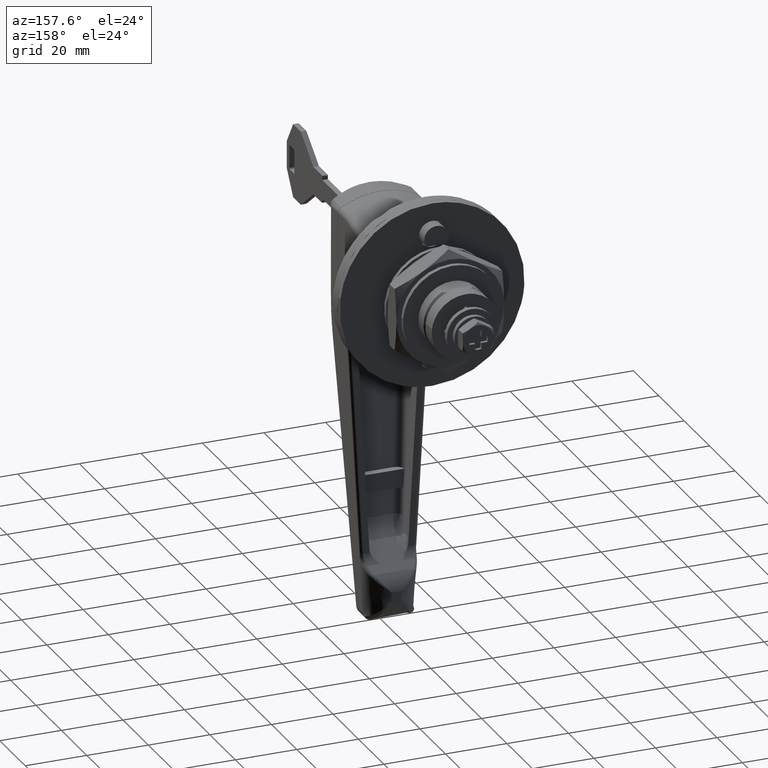
[diagram: clean part render]
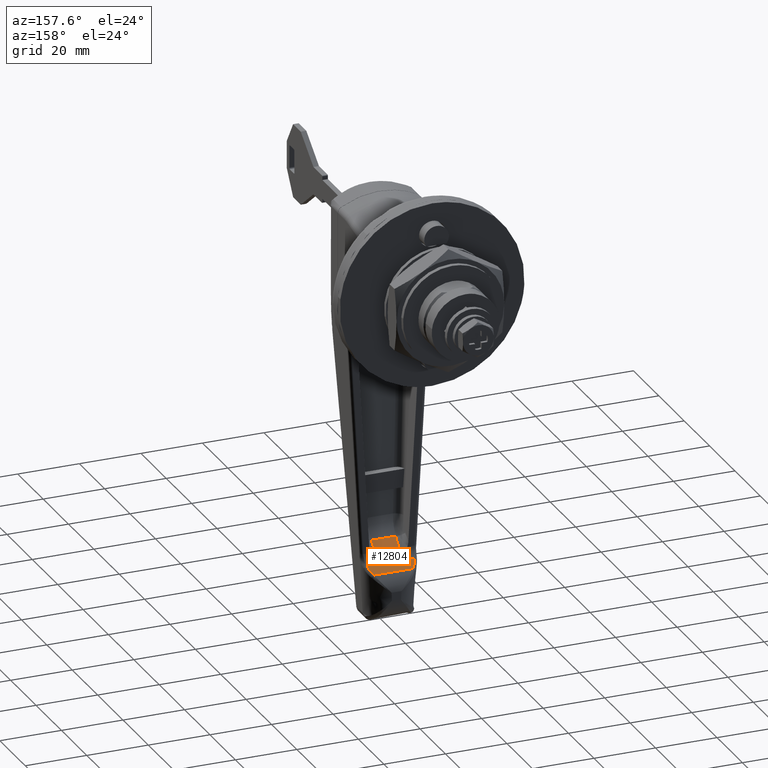
[diagram: same view with one face highlighted and labeled with its STEP entity id]
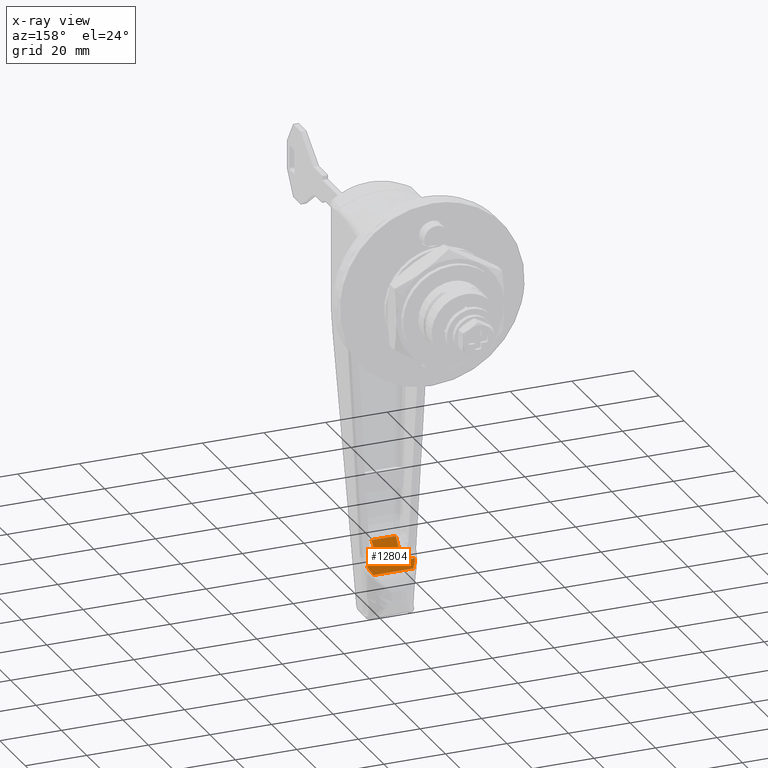
[diagram: x-ray of the same camera — body ghosted, the highlighted face saturated]
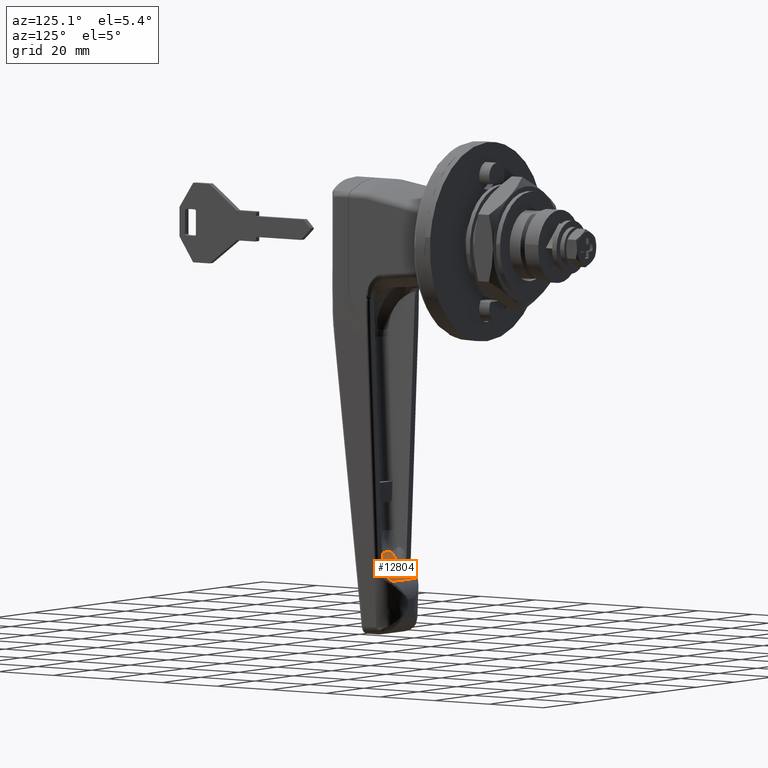
[diagram: same view with one face highlighted and labeled with its STEP entity id]
A machine part, auxiliary view. The second image highlights one B-rep face of the part: STEP entity #12804.
The next image is the same camera in x-ray: the body ghosted, the highlighted face saturated — about 0% of this face is hidden behind the body in this view.
A second angle (auxiliary view) of the same face is appended — the face is thin or edge-on in the first view.
In plain terms, the highlighted face is a freeform B-spline surface patch.
Its self-contained STEP definition (entity closure, byte-faithful):
#6948=CARTESIAN_POINT('',(-31.635533905932551,-7.742059716016160,-101.464465905932600));
#6949=VERTEX_POINT('',#6948);
#7049=CARTESIAN_POINT('',(-29.443145750507650,-6.395965675732420,-103.656853750507590));
#7050=VERTEX_POINT('',#7049);
#7064=CARTESIAN_POINT('',(-31.635533905932551,-7.742059716016160,-101.464465905932600));
#7065=CARTESIAN_POINT('',(-30.408878801560618,-7.296403844959794,-102.691120836382110));
#7066=CARTESIAN_POINT('',(-29.443145750507650,-6.395965675732420,-103.656853750507590));
#7074=(BOUNDED_CURVE()B_SPLINE_CURVE(2,(#7064,#7065,#7066),.UNSPECIFIED.,.F.,.U.)CURVE()GEOMETRIC_REPRESENTATION_ITEM()QUASI_UNIFORM_CURVE()RATIONAL_B_SPLINE_CURVE((1.0,0.977895714591920,1.0))REPRESENTATION_ITEM(''));
#7075=EDGE_CURVE('',#6949,#7050,#7074,.T.);
#7638=CARTESIAN_POINT('',(-31.635533905932551,7.742059700512010,-101.464465905932600));
#7639=VERTEX_POINT('',#7638);
#7751=CARTESIAN_POINT('',(-29.443145750507650,6.395965710801590,-103.656853750507590));
#7752=VERTEX_POINT('',#7751);
#7782=CARTESIAN_POINT('',(-29.443145750507650,6.395965710801590,-103.656853750507590));
#7783=CARTESIAN_POINT('',(-30.408878831459457,7.296403856661801,-102.691120806483270));
#7784=CARTESIAN_POINT('',(-31.635533905932551,7.742059700512010,-101.464465905932600));
#7792=(BOUNDED_CURVE()B_SPLINE_CURVE(2,(#7782,#7783,#7784),.UNSPECIFIED.,.F.,.U.)CURVE()GEOMETRIC_REPRESENTATION_ITEM()QUASI_UNIFORM_CURVE()RATIONAL_B_SPLINE_CURVE((1.0,0.977895715517294,1.0))REPRESENTATION_ITEM(''));
#7793=EDGE_CURVE('',#7752,#7639,#7792,.T.);
#8423=CARTESIAN_POINT('',(-37.269600141216763,3.956541414289030,-95.830399858783494));
#8424=VERTEX_POINT('',#8423);
#8869=CARTESIAN_POINT('',(-37.269600141216763,-3.956541413496995,-95.830399858783494));
#8870=VERTEX_POINT('',#8869);
#9318=CARTESIAN_POINT('',(-37.269600141216763,3.956541414289030,-95.830399858783494));
#9319=CARTESIAN_POINT('',(-37.269600141216763,-3.956541413496995,-95.830399858783494));
#9320=QUASI_UNIFORM_CURVE('',1,(#9318,#9319),.UNSPECIFIED.,.F.,.U.);
#9321=EDGE_CURVE('',#8424,#8870,#9320,.T.);
#9398=CARTESIAN_POINT('',(-34.452567070608438,3.797395287932277,-98.647432929391769));
#9399=VERTEX_POINT('',#9398);
#9400=CARTESIAN_POINT('',(-37.269600141216763,3.956541414289030,-95.830399858783494));
#9401=CARTESIAN_POINT('',(-36.330589117680780,3.903492704975646,-96.769410882319519));
#9402=CARTESIAN_POINT('',(-35.391578094144613,3.850443996453961,-97.708421905855630));
#9403=CARTESIAN_POINT('',(-34.452567070608438,3.797395287932277,-98.647432929391755));
#9404=B_SPLINE_CURVE_WITH_KNOTS('',3,(#9400,#9401,#9402,#9403),.UNSPECIFIED.,.F.,.U.,(4,4),(0.0,0.102404795091925),.UNSPECIFIED.);
#9405=EDGE_CURVE('',#8424,#9399,#9404,.T.);
#9407=CARTESIAN_POINT('',(-31.635533952966249,3.638249162367160,-101.464465952966410));
#9408=VERTEX_POINT('',#9407);
#9409=CARTESIAN_POINT('',(-34.452567070608438,3.797395287932277,-98.647432929391755));
#9410=CARTESIAN_POINT('',(-33.513556047072271,3.744346579410592,-99.586443952927866));
#9411=CARTESIAN_POINT('',(-32.574545023536103,3.691297870888907,-100.525454976464000));
#9412=CARTESIAN_POINT('',(-31.635533952966249,3.638249162367160,-101.464465952966410));
#9413=B_SPLINE_CURVE_WITH_KNOTS('',3,(#9409,#9410,#9411,#9412),.UNSPECIFIED.,.F.,.U.,(4,4),(0.102404795091925,0.204809590183850),.UNSPECIFIED.);
#9414=EDGE_CURVE('',#9399,#9408,#9413,.T.);
#9478=CARTESIAN_POINT('',(-31.635533999999950,-3.638249162366865,-101.464466000000000));
#9479=VERTEX_POINT('',#9478);
#9510=CARTESIAN_POINT('',(-34.452567070608403,-3.797395287931923,-98.647432929391854));
#9511=VERTEX_POINT('',#9510);
#9512=CARTESIAN_POINT('',(-31.635533999999929,-3.638249162366865,-101.464466000000200));
#9513=CARTESIAN_POINT('',(-32.574545023536103,-3.691297870888551,-100.525454976464000));
#9514=CARTESIAN_POINT('',(-33.513556047072250,-3.744346579410236,-99.586443952927922));
#9515=CARTESIAN_POINT('',(-34.452567070608403,-3.797395287931922,-98.647432929391826));
#9516=B_SPLINE_CURVE_WITH_KNOTS('',3,(#9512,#9513,#9514,#9515),.UNSPECIFIED.,.F.,.U.,(4,4),(0.795190409816156,0.897595204908078),.UNSPECIFIED.);
#9517=EDGE_CURVE('',#9479,#9511,#9516,.T.);
#9519=CARTESIAN_POINT('',(-34.452567070608403,-3.797395287931922,-98.647432929391826));
#9520=CARTESIAN_POINT('',(-35.391578094144549,-3.850443996453608,-97.708421905855744));
#9521=CARTESIAN_POINT('',(-36.330589117680702,-3.903492704975294,-96.769410882319661));
#9522=CARTESIAN_POINT('',(-37.269600141216848,-3.956541413496980,-95.830399858783593));
#9523=B_SPLINE_CURVE_WITH_KNOTS('',3,(#9519,#9520,#9521,#9522),.UNSPECIFIED.,.F.,.U.,(4,4),(0.897595204908078,1.0),.UNSPECIFIED.);
#9524=EDGE_CURVE('',#9511,#8870,#9523,.T.);
#12770=CARTESIAN_POINT('',(-29.443145750507650,6.395965710801590,-103.656853750507590));
#12771=CARTESIAN_POINT('',(-29.443145750507650,-6.395965675732420,-103.656853750507590));
#12772=QUASI_UNIFORM_CURVE('',1,(#12770,#12771),.UNSPECIFIED.,.F.,.U.);
#12773=EDGE_CURVE('',#7752,#7050,#12772,.T.);
#12779=CARTESIAN_POINT('',(-29.052214839931299,-8.515491450860511,-104.047784605655490));
#12780=CARTESIAN_POINT('',(-37.660532616672789,-8.515491450860511,-95.439468049453041));
#12781=CARTESIAN_POINT('',(-29.052214839931299,8.515491850672811,-104.047784605655490));
#12782=CARTESIAN_POINT('',(-37.660532616672789,8.515491850672811,-95.439468049453041));
#12783=B_SPLINE_SURFACE_WITH_KNOTS('',1,1,((#12779,#12781),(#12780,#12782)),.UNSPECIFIED.,.F.,.F.,.U.,(2,2),(2,2),(0.0,12.173998886033800),(0.0,17.030983301533318),.UNSPECIFIED.);
#12784=ORIENTED_EDGE('',*,*,#12773,.F.);
#12785=ORIENTED_EDGE('',*,*,#7793,.T.);
#12786=CARTESIAN_POINT('',(-31.635533905932551,7.742059700512010,-101.464465905932600));
#12787=CARTESIAN_POINT('',(-31.635533952966249,3.638249162367160,-101.464465952966410));
#12788=QUASI_UNIFORM_CURVE('',1,(#12786,#12787),.UNSPECIFIED.,.F.,.U.);
#12789=EDGE_CURVE('',#7639,#9408,#12788,.T.);
#12790=ORIENTED_EDGE('',*,*,#12789,.T.);
#12791=ORIENTED_EDGE('',*,*,#9414,.F.);
#12792=ORIENTED_EDGE('',*,*,#9405,.F.);
#12793=ORIENTED_EDGE('',*,*,#9321,.T.);
#12794=ORIENTED_EDGE('',*,*,#9524,.F.);
#12795=ORIENTED_EDGE('',*,*,#9517,.F.);
#12796=CARTESIAN_POINT('',(-31.635533999999950,-3.638249162366865,-101.464466000000000));
#12797=CARTESIAN_POINT('',(-31.635533905932551,-7.742059716016160,-101.464465905932600));
#12798=QUASI_UNIFORM_CURVE('',1,(#12796,#12797),.UNSPECIFIED.,.F.,.U.);
#12799=EDGE_CURVE('',#9479,#6949,#12798,.T.);
#12800=ORIENTED_EDGE('',*,*,#12799,.T.);
#12801=ORIENTED_EDGE('',*,*,#7075,.T.);
#12802=EDGE_LOOP('',(#12784,#12785,#12790,#12791,#12792,#12793,#12794,#12795,#12800,#12801));
#12803=FACE_OUTER_BOUND('',#12802,.T.);
#12804=ADVANCED_FACE('',(#12803),#12783,.F.);